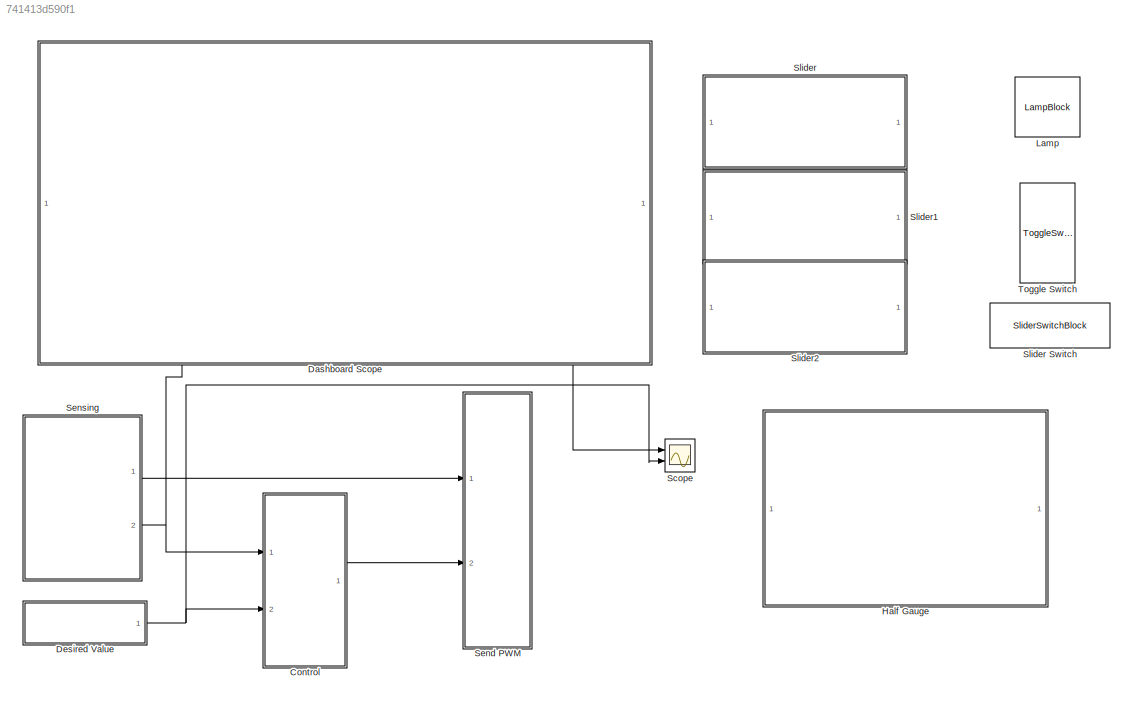
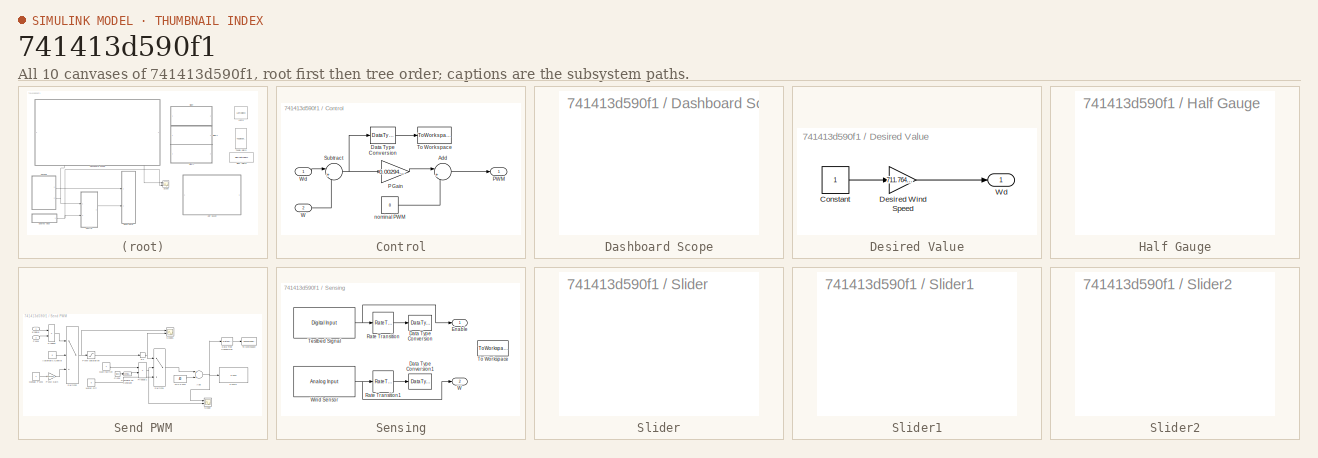
[diagram: thumbnail index - all 10 canvases of the model, root first then tree order]
MODEL slx_741413d590f1
KIND model
CONFIG AbsTol = auto
CONFIG EnableMultiTasking = on
CONFIG FixedStep = 0.005
CONFIG MaxStep = auto
CONFIG MinStep = auto
CONFIG RelTol = 1e-3
CONFIG SampleTimeConstraint = Unconstrained
CONFIG Solver = FixedStepAuto
CONFIG SolverName = FixedStepAuto
CONFIG StartTime = 0.0
CONFIG StopTime = inf
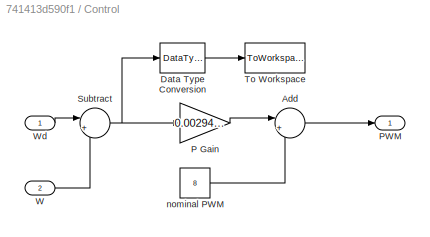
BLOCK [SubSystem] Control
  Ports = [2, 1]
  RequestExecContextInheritance = off
BLOCK [Sum] Control/Add
  IconShape = round
  InputSameDT = off
  Inputs = |++
  OutDataTypeStr = Inherit: Inherit via internal rule
  Ports = [2, 1]
  SaturateOnIntegerOverflow = off
BLOCK [DataTypeConversion] Control/Data Type Conversion
  OutDataTypeStr = double
  RndMeth = Floor
  SaturateOnIntegerOverflow = off
BLOCK [Gain] Control/P Gain
  Gain = 0.0029411764706
  OutDataTypeStr = Inherit: Inherit via internal rule
  ParamDataTypeStr = Inherit: Inherit via internal rule
  SaturateOnIntegerOverflow = off
BLOCK [Outport] Control/PWM
  IconDisplay = Port number
BLOCK [Sum] Control/Subtract
  IconShape = round
  InputSameDT = off
  Inputs = |+-
  OutDataTypeStr = Inherit: Inherit via internal rule
  Ports = [2, 1]
  SaturateOnIntegerOverflow = off
BLOCK [ToWorkspace] Control/To Workspace
  FixptAsFi = on
  MaxDataPoints = inf
  Ports = [1]
  SampleTime = -1
  Save2DSignal = 3-D array (concatenate along third dimension)
  SaveFormat = Structure With Time
  VariableName = error
BLOCK [Inport] Control/W
  IconDisplay = Port number
  Port = 2
BLOCK [Inport] Control/Wd
  IconDisplay = Port number
BLOCK [Constant] Control/nominal PWM
  Value = 8
BLOCK [SubSystem] Dashboard Scope
  DialogController = hmiCreateDDGDialog
  IsWebBlock = on
  MaskHideContents = on
  Ports = []
  RequestExecContextInheritance = off
BLOCK [SubSystem] Desired Value
  Ports = [0, 1]
  RequestExecContextInheritance = off
BLOCK [Constant] Desired Value/Constant
BLOCK [Gain] Desired Value/Desired Wind Speed 
  Gain = 711.76470588235
  OutDataTypeStr = Inherit: Inherit via internal rule
  ParamDataTypeStr = Inherit: Inherit via internal rule
  SaturateOnIntegerOverflow = off
BLOCK [Outport] Desired Value/Wd
  IconDisplay = Port number
BLOCK [SubSystem] Half Gauge
  DialogController = hmiCreateDDGDialog
  IsWebBlock = on
  MaskHideContents = on
  Ports = []
  RequestExecContextInheritance = off
BLOCK [LampBlock] Lamp
  WebBlockId = 101
BLOCK [Scope] Scope
  Floating = off
  NumInputPorts = 2
  Ports = [2]
  ScopeSpecificationString = Simulink.scopes.TimeScopeBlockCfg('CurrentConfiguration', extmgr.ConfigurationSet(extmgr.Configuration('Core','General UI',true),extmgr.Configuration('Core','Source UI',true),extmgr.Configuration('Sources','WiredSimulink',true),extmgr.Configuration('Visuals','Time Domain',true,'SerializedDisplays',{struct('MinYLimReal','-88.97059','MaxYLimReal','800.73529','YLabelReal','','MinYLimMag','0.00000','M...<+1384ch>
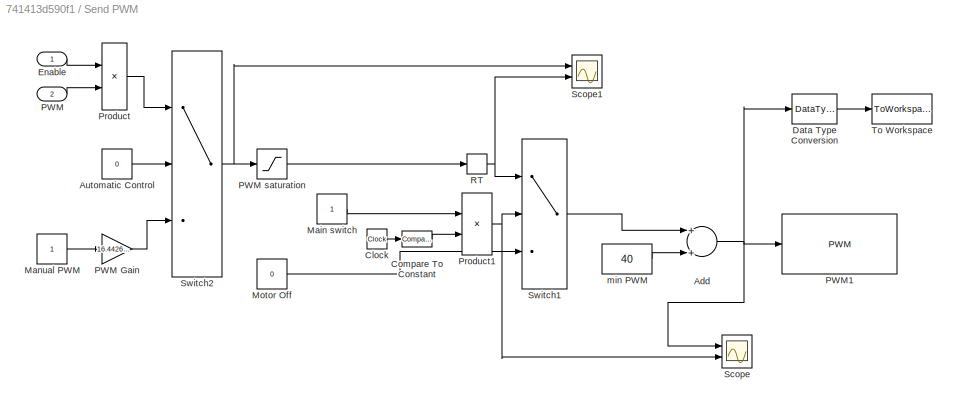
BLOCK [SubSystem] Send PWM
  Ports = [2]
  RequestExecContextInheritance = off
BLOCK [Sum] Send PWM/Add
  InputSameDT = off
  OutDataTypeStr = Inherit: Inherit via internal rule
  Ports = [2, 1]
  SaturateOnIntegerOverflow = off
BLOCK [Constant] Send PWM/Automatic Control
  Value = 0
BLOCK [Clock] Send PWM/Clock
BLOCK [Reference] Send PWM/Compare To Constant  REF=simulink/Logic and Bit
Operations/Compare
To Constant
  Ports = [1, 1]
  SourceBlock = simulink/Logic and Bit\nOperations/Compare\nTo Constant
  SourceProductBaseCode = SL
  SourceProductName = Simulink
  SourceType = Compare To Constant
BLOCK [DataTypeConversion] Send PWM/Data Type Conversion
  OutDataTypeStr = double
  RndMeth = Floor
  SaturateOnIntegerOverflow = off
BLOCK [Inport] Send PWM/Enable
  IconDisplay = Port number
BLOCK [Constant] Send PWM/Main switch
BLOCK [Constant] Send PWM/Manual PWM
BLOCK [Constant] Send PWM/Motor Off
  Value = 0
BLOCK [Inport] Send PWM/PWM
  IconDisplay = Port number
  Port = 2
BLOCK [Gain] Send PWM/PWM Gain
  Gain = 16.442687747036
  OutDataTypeStr = Inherit: Inherit via internal rule
  ParamDataTypeStr = Inherit: Inherit via internal rule
  SaturateOnIntegerOverflow = off
BLOCK [Saturate] Send PWM/PWM saturation
  InputPortMap = u0
  LowerLimit = minPWM
  Ports = [1, 1]
  UpperLimit = maxPWM
BLOCK [Reference] Send PWM/PWM1  REF=arduinolib/PWM
  Ports = [1]
  SourceBlock = arduinolib/PWM
  SourceProductBaseCode = ARDUINO
  SourceProductName = Simulink Support Package for Arduino Hardware
  SourceType = Arduino PWM
BLOCK [Product] Send PWM/Product
  InputSameDT = off
  OutDataTypeStr = Inherit: Inherit via internal rule
  Ports = [2, 1]
  RndMeth = Floor
  SaturateOnIntegerOverflow = off
BLOCK [Product] Send PWM/Product1
  InputSameDT = off
  OutDataTypeStr = Inherit: Inherit via internal rule
  Ports = [2, 1]
  RndMeth = Floor
  SaturateOnIntegerOverflow = off
BLOCK [RateTransition] Send PWM/RT
  OutPortSampleTime = 0.005
BLOCK [Scope] Send PWM/Scope
  Floating = off
  NumInputPorts = 2
  Ports = [2]
  ScopeSpecificationString = Simulink.scopes.TimeScopeBlockCfg('CurrentConfiguration', extmgr.ConfigurationSet(extmgr.Configuration('Core','General UI',true),extmgr.Configuration('Core','Source UI',true),extmgr.Configuration('Sources','WiredSimulink',true,'DataLoggingVariableName','ScopeData1'),extmgr.Configuration('Visuals','Time Domain',true,'SerializedDisplays',{struct('MinYLimReal','-10.00000','MaxYLimReal','90.00000','YL...<+1408ch>
BLOCK [Scope] Send PWM/Scope1
  Floating = off
  NumInputPorts = 2
  Ports = [2]
  ScopeSpecificationString = Simulink.scopes.TimeScopeBlockCfg('CurrentConfiguration', extmgr.ConfigurationSet(extmgr.Configuration('Core','General UI',true),extmgr.Configuration('Core','Source UI',true),extmgr.Configuration('Sources','WiredSimulink',true,'DataLoggingVariableName','ScopeData2'),extmgr.Configuration('Visuals','Time Domain',true,'SerializedDisplays',{struct('MinYLimReal','30.00000','MaxYLimReal','50.00000','YLa...<+1431ch>
BLOCK [Switch] Send PWM/Switch1
  Criteria = u2 > Threshold
  InputSameDT = off
  SaturateOnIntegerOverflow = off
BLOCK [Switch] Send PWM/Switch2
  Criteria = u2 > Threshold
  InputSameDT = off
  SaturateOnIntegerOverflow = off
BLOCK [ToWorkspace] Send PWM/To Workspace
  FixptAsFi = on
  MaxDataPoints = inf
  Ports = [1]
  SampleTime = -1
  Save2DSignal = 3-D array (concatenate along third dimension)
  SaveFormat = Structure With Time
  VariableName = PWM
BLOCK [Constant] Send PWM/min PWM
  Value = 40
BLOCK [SubSystem] Sensing
  Ports = [0, 2]
  RequestExecContextInheritance = off
BLOCK [DataTypeConversion] Sensing/Data Type Conversion
  OutDataTypeStr = double
  RndMeth = Floor
  SaturateOnIntegerOverflow = off
BLOCK [DataTypeConversion] Sensing/Data Type Conversion1
  OutDataTypeStr = double
  RndMeth = Floor
  SaturateOnIntegerOverflow = off
BLOCK [Outport] Sensing/Enable
  IconDisplay = Port number
BLOCK [RateTransition] Sensing/Rate Transition
BLOCK [RateTransition] Sensing/Rate Transition1
BLOCK [Reference] Sensing/Testbed Signal   REF=arduinolib/Digital Input
  Ports = [0, 1]
  SourceBlock = arduinolib/Digital Input
  SourceProductBaseCode = ARDUINO
  SourceProductName = Simulink Support Package for Arduino Hardware
  SourceType = Arduino Digital Input
BLOCK [ToWorkspace] Sensing/To Workspace
  FixptAsFi = on
  MaxDataPoints = inf
  Ports = [1]
  SampleTime = -1
  Save2DSignal = 3-D array (concatenate along third dimension)
  SaveFormat = Structure With Time
  VariableName = sensors
BLOCK [Outport] Sensing/W
  IconDisplay = Port number
  Port = 2
BLOCK [Reference] Sensing/Wind Sensor  REF=arduinolib/Analog Input
  Ports = [0, 1]
  SourceBlock = arduinolib/Analog Input
  SourceProductBaseCode = ARDUINO
  SourceProductName = Simulink Support Package for Arduino Hardware
  SourceType = Arduino Analog Input
BLOCK [SubSystem] Slider
  DialogController = hmiCreateDDGDialog
  IsWebBlock = on
  MaskHideContents = on
  Ports = []
  RequestExecContextInheritance = off
BLOCK [SliderSwitchBlock] Slider Switch
  WebBlockId = 56
BLOCK [SubSystem] Slider1
  DialogController = hmiCreateDDGDialog
  IsWebBlock = on
  MaskHideContents = on
  Ports = []
  RequestExecContextInheritance = off
BLOCK [SubSystem] Slider2
  DialogController = hmiCreateDDGDialog
  IsWebBlock = on
  MaskHideContents = on
  Ports = []
  RequestExecContextInheritance = off
BLOCK [ToggleSwitchBlock] Toggle Switch
  WebBlockId = 59
LINE Control/Add:1 -> Control/PWM:1
LINE Control/Data Type Conversion:1 -> Control/To Workspace:1
LINE Control/P Gain:1 -> Control/Add:1
NET Control/Subtract:1 -> Control/Data Type Conversion:1, Control/P Gain:1
LINE Control/W:1 -> Control/Subtract:2
LINE Control/Wd:1 -> Control/Subtract:1
LINE Control/nominal PWM:1 -> Control/Add:2
LINE Control:1 -> Send PWM:2
LINE Desired Value/Constant:1 -> Desired Value/Desired Wind Speed :1
LINE Desired Value/Desired Wind Speed :1 -> Desired Value/Wd:1
NET Desired Value:1 -> Control:2, Scope:2
NET Send PWM/Add:1 -> Send PWM/Data Type Conversion:1, Send PWM/PWM1:1, Send PWM/Scope:1
LINE Send PWM/Automatic Control:1 -> Send PWM/Switch2:2
LINE Send PWM/Clock:1 -> Send PWM/Compare To Constant:1
LINE Send PWM/Compare To Constant:1 -> Send PWM/Product1:2
LINE Send PWM/Data Type Conversion:1 -> Send PWM/To Workspace:1
LINE Send PWM/Enable:1 -> Send PWM/Product:1
LINE Send PWM/Main switch:1 -> Send PWM/Product1:1
LINE Send PWM/Manual PWM:1 -> Send PWM/PWM Gain:1
LINE Send PWM/Motor Off:1 -> Send PWM/Switch1:3
LINE Send PWM/PWM Gain:1 -> Send PWM/Switch2:3
LINE Send PWM/PWM saturation:1 -> Send PWM/RT:1
LINE Send PWM/PWM:1 -> Send PWM/Product:2
NET Send PWM/Product1:1 -> Send PWM/Scope:2, Send PWM/Switch1:2
LINE Send PWM/Product:1 -> Send PWM/Switch2:1
NET Send PWM/RT:1 -> Send PWM/Scope1:2, Send PWM/Switch1:1
LINE Send PWM/Switch1:1 -> Send PWM/Add:1
NET Send PWM/Switch2:1 -> Send PWM/PWM saturation:1, Send PWM/Scope1:1
LINE Send PWM/min PWM:1 -> Send PWM/Add:2
LINE Sensing/Rate Transition1:1 -> Sensing/Data Type Conversion1:1
LINE Sensing/Rate Transition:1 -> Sensing/Data Type Conversion:1
NET Sensing/Testbed Signal :1 -> Sensing/Enable:1, Sensing/Rate Transition:1
NET Sensing/Wind Sensor:1 -> Sensing/Rate Transition1:1, Sensing/W:1
LINE Sensing:1 -> Send PWM:1
NET Sensing:2 -> Control:1, Scope:1
note: NET lines group one-source signal fan-out (src -> all destinations, sorted); 1:1 wires keep LINE
